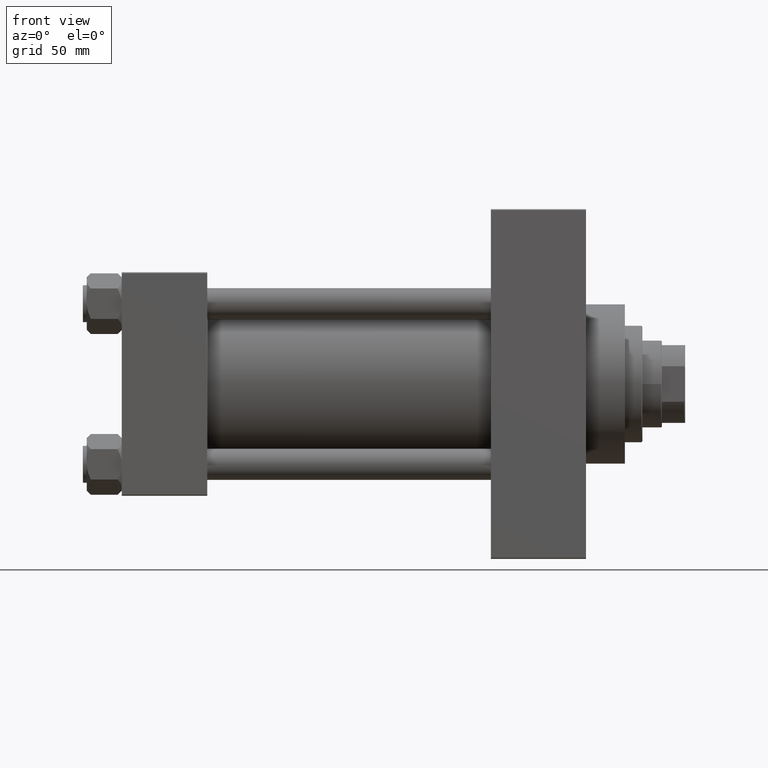
[diagram: clean part render]
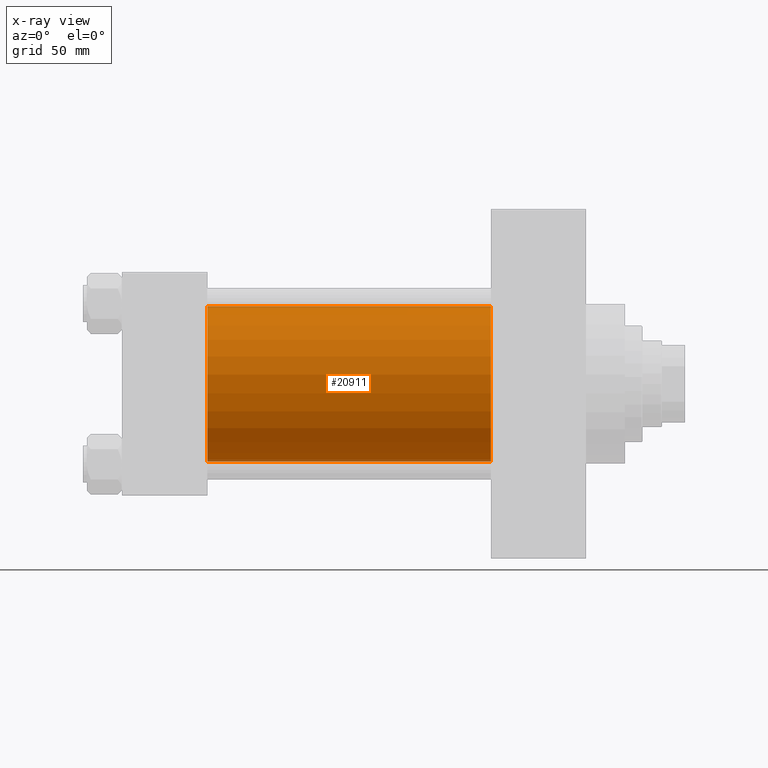
[diagram: x-ray — body ghosted, one internal face saturated and labeled with its STEP entity id]
A machine part, front view, then the same camera in x-ray: the body is ghosted and one INTERNAL B-rep face — a face not visible from any outside direction — is saturated and labeled: STEP entity #20911.
In plain terms, the highlighted cylindrical surface (partial cylindrical patch) has radius 40 mm, axis along (-1, -0, -0).
Its self-contained STEP definition (entity closure, byte-faithful):
#1255 = DIRECTION ( 'NONE',  ( 1.000000000000000000, 0.000000000000000000, 0.000000000000000000 ) ) ;
#2984 = CARTESIAN_POINT ( 'NONE',  ( 190.0000000000000000, 2.296501982624201990E-15, -40.00000000000000000 ) ) ;
#5927 = AXIS2_PLACEMENT_3D ( 'NONE', #27564, #46593, #24665 ) ;
#7400 = VERTEX_POINT ( 'NONE', #46314 ) ;
#7468 = VERTEX_POINT ( 'NONE', #33278 ) ;
#9059 = AXIS2_PLACEMENT_3D ( 'NONE', #33847, #41545, #15536 ) ;
#13626 = EDGE_CURVE ( 'NONE', #7468, #7400, #23599, .T. ) ;
#14385 = EDGE_CURVE ( 'NONE', #44321, #34565, #23123, .T. ) ;
#14708 = AXIS2_PLACEMENT_3D ( 'NONE', #41502, #1255, #15737 ) ;
#15536 = DIRECTION ( 'NONE',  ( 0.000000000000000000, 0.000000000000000000, -1.000000000000000000 ) ) ;
#15737 = DIRECTION ( 'NONE',  ( 0.000000000000000000, 0.000000000000000000, -1.000000000000000000 ) ) ;
#16611 = ORIENTED_EDGE ( 'NONE', *, *, #46205, .F. ) ;
#17924 = VECTOR ( 'NONE', #29507, 1000.000000000000000 ) ;
#20334 = CYLINDRICAL_SURFACE ( 'NONE', #5927, 40.00000000000000000 ) ;
#20911 = ADVANCED_FACE ( 'NONE', ( #46103 ), #20334, .F. ) ;
#22993 = CARTESIAN_POINT ( 'NONE',  ( 190.0000000000000000, 2.296501982624201990E-15, -40.00000000000000000 ) ) ;
#23123 = LINE ( 'NONE', #2984, #17924 ) ;
#23599 = LINE ( 'NONE', #38305, #26382 ) ;
#24665 = DIRECTION ( 'NONE',  ( 0.000000000000000000, 0.000000000000000000, 1.000000000000000000 ) ) ;
#26382 = VECTOR ( 'NONE', #31084, 1000.000000000000000 ) ;
#27178 = CARTESIAN_POINT ( 'NONE',  ( 44.00000000000000000, 2.296501982624201990E-15, -40.00000000000000000 ) ) ;
#27564 = CARTESIAN_POINT ( 'NONE',  ( 190.0000000000000000, -2.602085213965210642E-15, 0.000000000000000000 ) ) ;
#29507 = DIRECTION ( 'NONE',  ( -1.000000000000000000, -0.000000000000000000, -0.000000000000000000 ) ) ;
#31084 = DIRECTION ( 'NONE',  ( -1.000000000000000000, -0.000000000000000000, -0.000000000000000000 ) ) ;
#33278 = CARTESIAN_POINT ( 'NONE',  ( 190.0000000000000000, -2.602085213965210642E-15, 40.00000000000000000 ) ) ;
#33847 = CARTESIAN_POINT ( 'NONE',  ( 190.0000000000000000, -2.602085213965210642E-15, 0.000000000000000000 ) ) ;
#34436 = CIRCLE ( 'NONE', #9059, 40.00000000000000000 ) ;
#34565 = VERTEX_POINT ( 'NONE', #27178 ) ;
#35818 = ORIENTED_EDGE ( 'NONE', *, *, #13626, .F. ) ;
#37460 = EDGE_LOOP ( 'NONE', ( #39702, #43190, #16611, #35818 ) ) ;
#38305 = CARTESIAN_POINT ( 'NONE',  ( 190.0000000000000000, -2.602085213965210642E-15, 40.00000000000000000 ) ) ;
#38541 = CIRCLE ( 'NONE', #14708, 40.00000000000000000 ) ;
#38626 = EDGE_CURVE ( 'NONE', #7468, #44321, #34436, .T. ) ;
#39702 = ORIENTED_EDGE ( 'NONE', *, *, #38626, .T. ) ;
#41502 = CARTESIAN_POINT ( 'NONE',  ( 44.00000000000000000, -2.602085213965210642E-15, 0.000000000000000000 ) ) ;
#41545 = DIRECTION ( 'NONE',  ( 1.000000000000000000, 0.000000000000000000, 0.000000000000000000 ) ) ;
#43190 = ORIENTED_EDGE ( 'NONE', *, *, #14385, .T. ) ;
#44321 = VERTEX_POINT ( 'NONE', #22993 ) ;
#46103 = FACE_OUTER_BOUND ( 'NONE', #37460, .T. ) ;
#46205 = EDGE_CURVE ( 'NONE', #7400, #34565, #38541, .T. ) ;
#46314 = CARTESIAN_POINT ( 'NONE',  ( 44.00000000000000000, -2.602085213965210642E-15, 40.00000000000000000 ) ) ;
#46593 = DIRECTION ( 'NONE',  ( -1.000000000000000000, -0.000000000000000000, -0.000000000000000000 ) ) ;